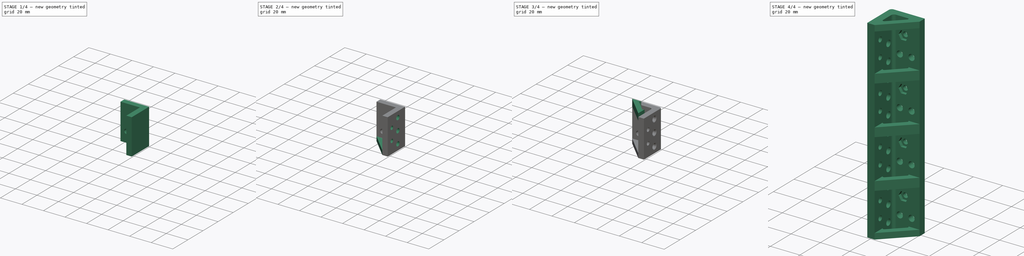
[diagram: build sequence overview — one tinted view per stage of 4, left to right]
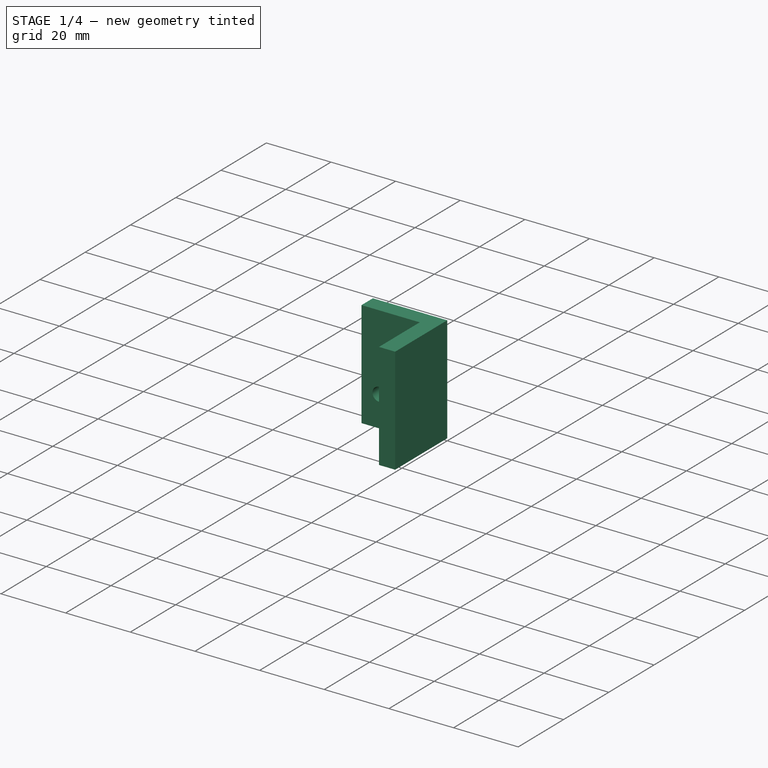
[diagram: stage 1 of 4 — iso view after this stage's code; geometry added in this stage tinted green]
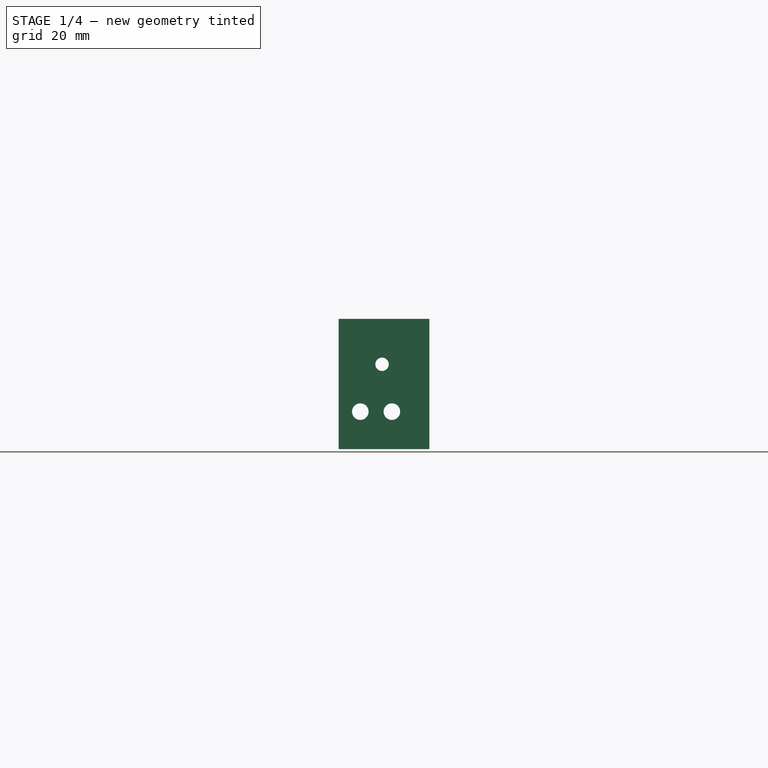
[diagram: stage 1 of 4 — front view after this stage's code; geometry added in this stage tinted green]
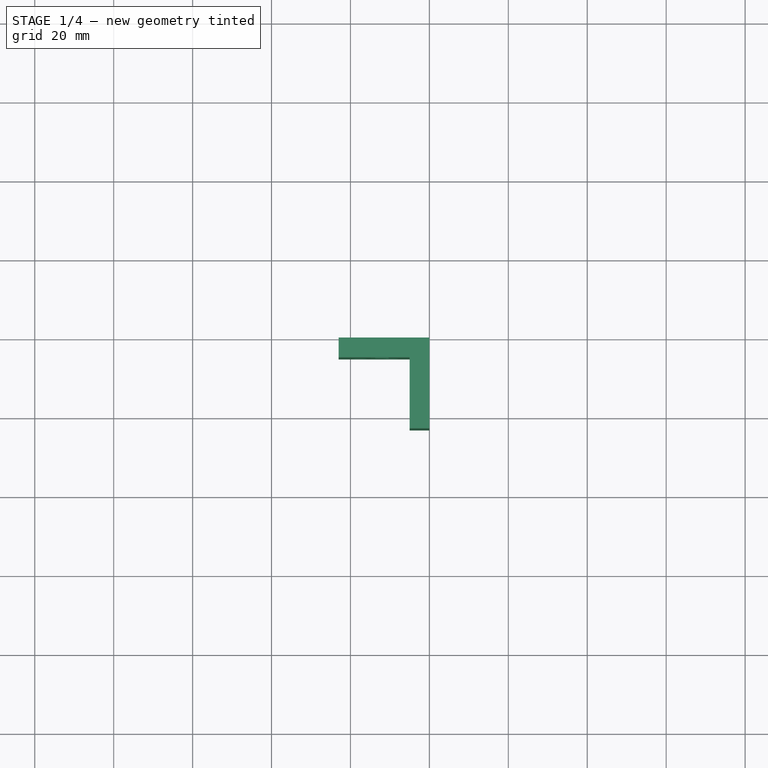
[diagram: stage 1 of 4 — top view after this stage's code; geometry added in this stage tinted green]
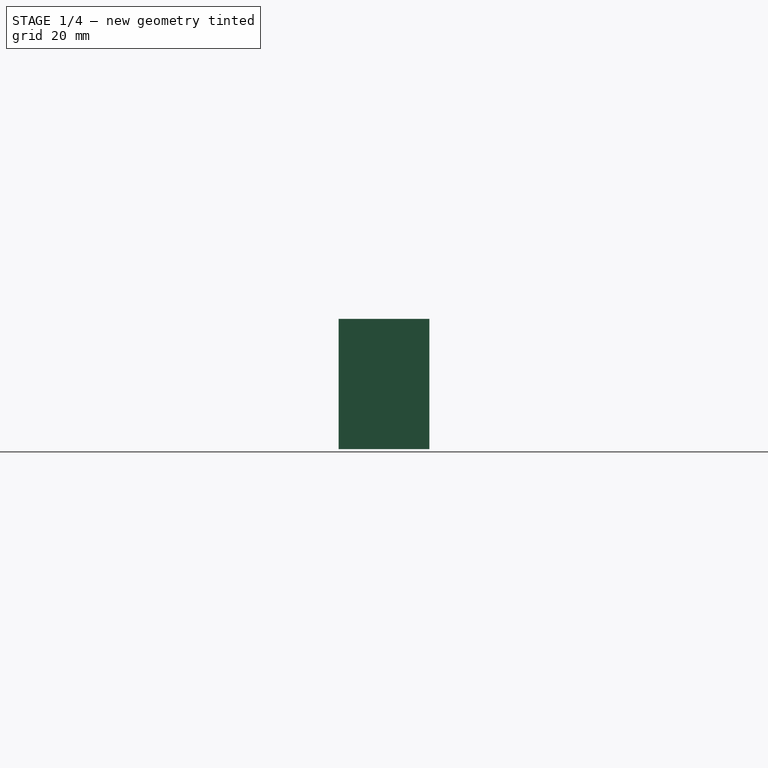
[diagram: stage 1 of 4 — right view after this stage's code; geometry added in this stage tinted green]
FCSTD DOCUMENT  (FreeCAD 0.19R24276 (Git))
Label: vert_branch
License: All rights reserved
LicenseURL: http://en.wikipedia.org/wiki/All_rights_reserved
objects: Sketcher::SketchObject×7, PartDesign::Pad×3, PartDesign::Pocket×3, PartDesign::LinearPattern×3, PartDesign::Hole×2, PartDesign::Fillet×1, PartDesign::Chamfer×1, PartDesign::Body×1, Part::Mirroring×1
note: 32 computed .brp shape members not serialized (recipe doc carries the construction recipe); baked Part::Feature solids carry a one-line shape summary decoded from their .brp

FEATURE [Sketcher::SketchObject] Sketch  label="base_sk"
  FullyConstrained = true
  MapMode = 5
  Support = -> [XY_Plane]
  sketch-geometry (6):
    g0: LineSegment StartX=0 StartY=0 StartZ=0 EndX=-23 EndY=0 EndZ=0
    g1: LineSegment StartX=-23 StartY=0 StartZ=0 EndX=-23 EndY=-5 EndZ=0
    g2: LineSegment StartX=-23 StartY=-5 StartZ=0 EndX=-5 EndY=-5 EndZ=0
    g3: LineSegment StartX=-5 StartY=-5 StartZ=0 EndX=-5 EndY=-23 EndZ=0
    g4: LineSegment StartX=-5 StartY=-23 StartZ=0 EndX=0 EndY=-23 EndZ=0
    g5: LineSegment StartX=0 StartY=-23 StartZ=0 EndX=0 EndY=0 EndZ=0
  constraints (17):
    c: Coincident(g0,g-1)
    c: PointOnObject(g0,g-1)
    c: Coincident(g1,g0)
    c: Vertical(g1)
    c: Coincident(g2,g1)
    c: Horizontal(g2)
    c: Coincident(g3,g2)
    c: Vertical(g3)
    c: Coincident(g4,g3)
    c: PointOnObject(g4,g-2)
    c: Horizontal(g4)
    c: Coincident(g5,g4)
    c: Coincident(g5,g0)
    c: Distance(g0) = 23
    c: Distance(g1) = 5
    c: Distance(g4) = 5
    c: Distance(g5) = 23
FEATURE [PartDesign::Pad] Pad  label="base"
  Direction = (1,1,1)
  Length = 33
  Length2 = 100
  Midplane = true
  Profile = -> Sketch
  Type = 0
FEATURE [Sketcher::SketchObject] Sketch001  label="M3_hole_sk"
  FullyConstrained = true
  MapMode = 5
  Placement = pos=(0,-5,0) rot=(1,0,0;1.5708rad)
  Support = -> [Pad]
  sketch-geometry (1):
    g0: Circle CenterX=-12 CenterY=5 CenterZ=0 NormalX=0 NormalY=0 NormalZ=1 AngleXU=0 Radius=1
  constraints (3):
    c: DistanceY(g-1,g0) = 5
    c: DistanceX(g0,g-1) = 12
    c: Radius(g0) = 1
FEATURE [PartDesign::Hole] Hole  label="M3_hole"
  BaseFeature = -> Pad
  Depth = 25
  DepthType = 1
  Diameter = 3.4
  DrillForDepth = false
  DrillPoint = 1
  DrillPointAngle = 118
  HoleCutCountersinkAngle = 90
  HoleCutCustomValues = false
  HoleCutDepth = 0
  HoleCutDiameter = 6.1
  HoleCutType = 0
  ModelActualThread = false
  Profile = -> Sketch001
  Tapered = false
  TaperedAngle = 90
  ThreadAngle = 0
  ThreadClass = 0
  ThreadCutOffInner = 0
  ThreadCutOffOuter = 0
  ThreadDirection = 0
  ThreadFit = 0
  ThreadPitch = 0
  ThreadSize = 9
  ThreadType = 1
  Threaded = false
FEATURE [Sketcher::SketchObject] Sketch002  label="M3_hex_sk"
  ExternalGeometry = -> [Hole]
  FullyConstrained = true
  MapMode = 5
  Placement = pos=(0,-5,0) rot=(1,0,0;1.5708rad)
  Support = -> [Hole]
  sketch-geometry (7):
    g0: LineSegment StartX=-8.65137 StartY=5 StartZ=0 EndX=-10.3257 EndY=7.9 EndZ=0
    g1: LineSegment StartX=-10.3257 StartY=7.9 StartZ=0 EndX=-13.6743 EndY=7.9 EndZ=0
    g2: LineSegment StartX=-13.6743 StartY=7.9 StartZ=0 EndX=-15.3486 EndY=5 EndZ=0
    g3: LineSegment StartX=-15.3486 StartY=5 StartZ=0 EndX=-13.6743 EndY=2.1 EndZ=0
    g4: LineSegment StartX=-13.6743 StartY=2.1 StartZ=0 EndX=-10.3257 EndY=2.1 EndZ=0
    g5: LineSegment StartX=-10.3257 StartY=2.1 StartZ=0 EndX=-8.65137 EndY=5 EndZ=0
    g6: Circle CenterX=-12 CenterY=5 CenterZ=0 NormalX=0 NormalY=0 NormalZ=1 AngleXU=0 Radius=3.34863
  constraints (16):
    c: Coincident(g0,g1)
    c: Coincident(g1,g2)
    c: Coincident(g2,g3)
    c: Coincident(g3,g4)
    c: Coincident(g4,g5)
    c: Coincident(g5,g0)
    c: Equal(g0, g1-g5) x5
    c: PointOnObject(g0,g6)
    c: PointOnObject(g1,g6)
    c: PointOnObject(g2,g6)
    c: PointOnObject(g3,g6)
    c: PointOnObject(g4,g6)
    c: PointOnObject(g5,g6)
    c: Coincident(g6,g-3)
    c: Horizontal(g0,g6)
    c: DistanceY(g3,g1) = 5.8
FEATURE [PartDesign::Pocket] Pocket  label="M3_hex"
  BaseFeature = -> Hole
  Length = 2.15
  Length2 = 100
  Profile = -> Sketch002
  Type = 0
FEATURE [Sketcher::SketchObject] Sketch003  label="dowel_hole_sk"
  ExternalGeometry = -> [Pocket]
  FullyConstrained = true
  MapMode = 5
  Placement = pos=(0,-5,0) rot=(1,0,0;1.5708rad)
  Support = -> [Pocket]
  sketch-geometry (2):
    g0: Circle CenterX=-17.5 CenterY=-7 CenterZ=0 NormalX=0 NormalY=0 NormalZ=1 AngleXU=0 Radius=2.1
    g1: Circle CenterX=-9.5 CenterY=-7 CenterZ=0 NormalX=0 NormalY=0 NormalZ=1 AngleXU=0 Radius=2.1
  constraints (6):
    c: DistanceX(g-3,g1) = 2.5
    c: DistanceY(g1,g-1) = 7
    c: Horizontal(g0,g1)
    c: DistanceX(g0,g1) = 8
    c: Radius(g0) = 2.1
    c: Equal(g0,g1)
FEATURE [PartDesign::Pocket] Pocket001  label="dowel_hole"
  BaseFeature = -> Pocket
  Length = 5
  Length2 = 100
  Profile = -> Sketch003
  Type = 1
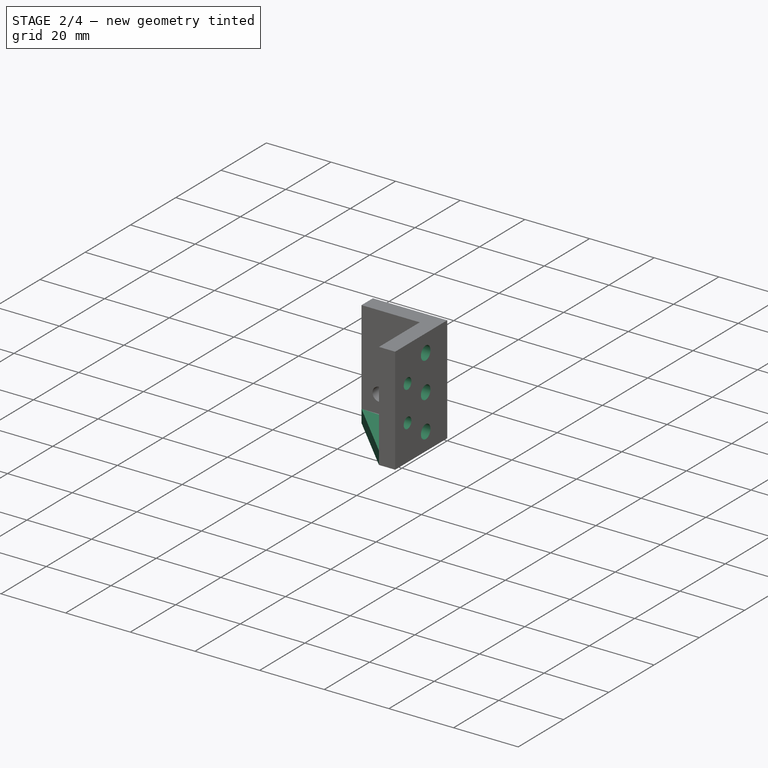
[diagram: stage 2 of 4 — iso view after this stage's code; geometry added in this stage tinted green]
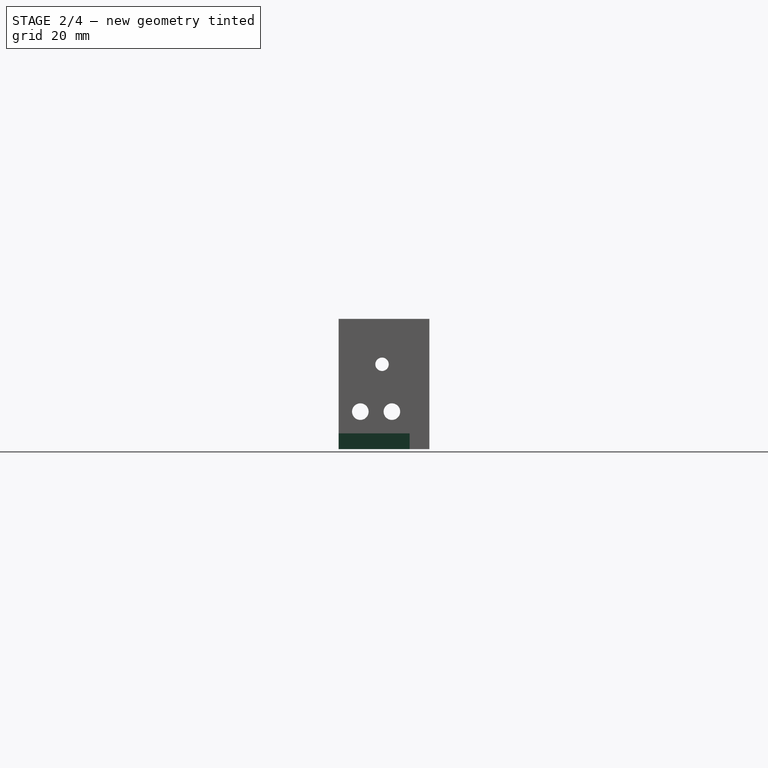
[diagram: stage 2 of 4 — front view after this stage's code; geometry added in this stage tinted green]
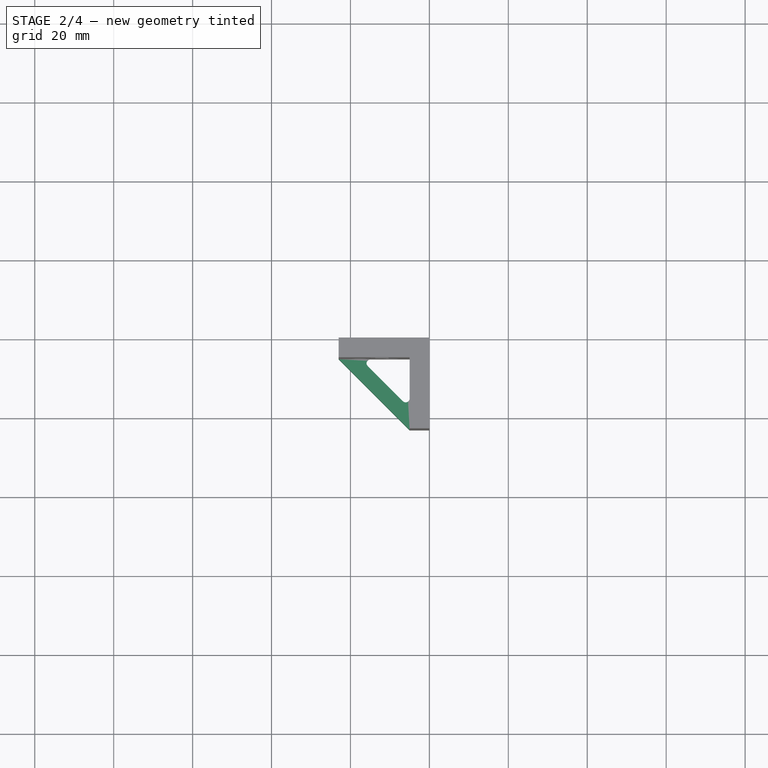
[diagram: stage 2 of 4 — top view after this stage's code; geometry added in this stage tinted green]
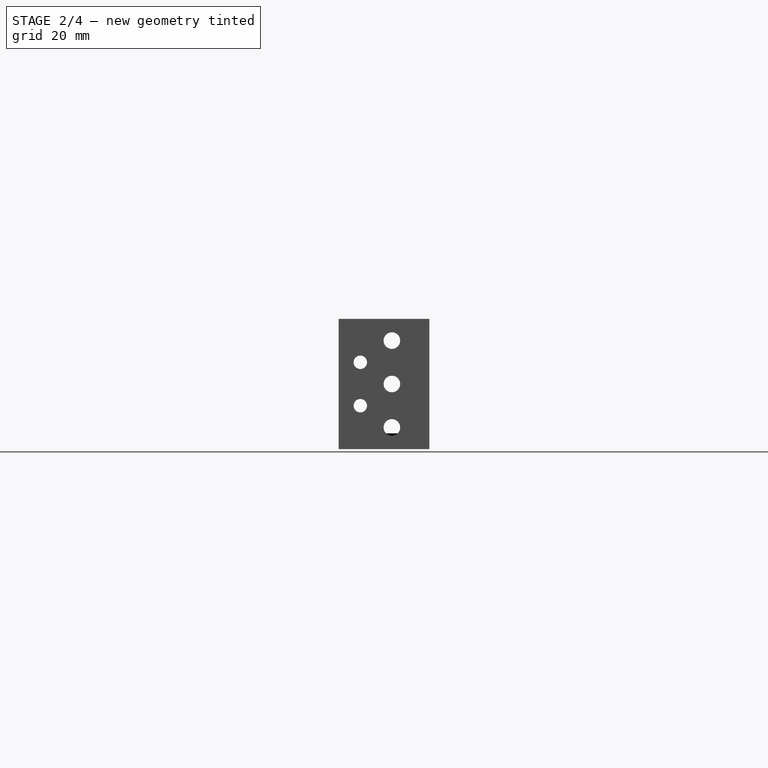
[diagram: stage 2 of 4 — right view after this stage's code; geometry added in this stage tinted green]
FEATURE [Sketcher::SketchObject] Sketch004  label="side_M3_hole_sk"
  ExternalGeometry = -> [Pocket001]
  FullyConstrained = true
  MapMode = 5
  Placement = pos=(0,0,0) rot=(0.57735,0.57735,0.57735;2.0944rad)
  Support = -> [Pocket001]
  sketch-geometry (2):
    g0: Circle CenterX=-17.5 CenterY=5.5 CenterZ=0 NormalX=0 NormalY=0 NormalZ=1 AngleXU=0 Radius=1
    g1: Circle CenterX=-17.5 CenterY=-5.5 CenterZ=0 NormalX=0 NormalY=0 NormalZ=1 AngleXU=0 Radius=1
  constraints (5):
    c: Symmetric(g0,g1,g-1)
    c: DistanceY(g1,g0) = 11
    c: Distance(g0,g-3) = 5.5
    c: Radius(g0) = 1
    c: Equal(g0,g1)
FEATURE [PartDesign::Hole] Hole001  label="side_M3_hole"
  BaseFeature = -> Pocket001
  Depth = 25
  DepthType = 1
  Diameter = 3.4
  DrillForDepth = false
  DrillPoint = 1
  DrillPointAngle = 118
  HoleCutCountersinkAngle = 90
  HoleCutCustomValues = false
  HoleCutDepth = 0
  HoleCutDiameter = 6.1
  HoleCutType = 0
  ModelActualThread = false
  Profile = -> Sketch004
  Tapered = false
  TaperedAngle = 90
  ThreadAngle = 0
  ThreadClass = 0
  ThreadCutOffInner = 0
  ThreadCutOffOuter = 0
  ThreadDirection = 0
  ThreadFit = 0
  ThreadPitch = 0
  ThreadSize = 9
  ThreadType = 1
  Threaded = false
FEATURE [Sketcher::SketchObject] Sketch005  label="side_dowel_hole_sk"
  ExternalGeometry = -> [Hole001]
  FullyConstrained = true
  MapMode = 5
  Placement = pos=(0,0,0) rot=(0.57735,0.57735,0.57735;2.0944rad)
  Support = -> [Hole001]
  sketch-geometry (3):
    g0: Circle CenterX=-9.5 CenterY=0 CenterZ=0 NormalX=0 NormalY=0 NormalZ=1 AngleXU=0 Radius=2.1
    g1: Circle CenterX=-9.5 CenterY=11 CenterZ=0 NormalX=0 NormalY=0 NormalZ=1 AngleXU=0 Radius=2.1
    g2: Circle CenterX=-9.5 CenterY=-11 CenterZ=0 NormalX=0 NormalY=0 NormalZ=1 AngleXU=0 Radius=2.1
  constraints (8):
    c: PointOnObject(g0,g-1)
    c: Vertical(g2,g1)
    c: Symmetric(g1,g2,g0)
    c: Equal(g0,g2)
    c: Equal(g2,g1)
    c: Radius(g0) = 2.1
    c: DistanceY(g0,g1) = 11
    c: DistanceX(g-3,g0) = 8
FEATURE [PartDesign::Pocket] Pocket002  label="side_dowel_hole"
  BaseFeature = -> Hole001
  Length = 5
  Length2 = 100
  Profile = -> Sketch005
  Type = 0
FEATURE [Sketcher::SketchObject] Sketch006  label="stiffener_sk"
  ExternalGeometry = -> [Pocket002]
  FullyConstrained = true
  MapMode = 5
  Placement = pos=(0,0,-16.5) rot=(1,0,0;3.14159rad)
  Support = -> [Pocket002]
  sketch-geometry (6):
    g0: LineSegment StartX=-5 StartY=23 StartZ=0 EndX=-23 EndY=5 EndZ=0
    g1: LineSegment StartX=-23 StartY=5 StartZ=0 EndX=-14.9289 EndY=5 EndZ=0
    g2: LineSegment StartX=-15.636 StartY=6.70711 StartZ=0 EndX=-6.70711 EndY=15.636 EndZ=0
    g3: LineSegment StartX=-5 StartY=14.9289 StartZ=0 EndX=-5 EndY=23 EndZ=0
    g4: ArcOfCircle CenterX=-6 CenterY=14.9289 CenterZ=0 NormalX=0 NormalY=0 NormalZ=1 AngleXU=0 Radius=1 StartAngle=-2.2498e-12 EndAngle=2.35619
    g5: ArcOfCircle CenterX=-14.9289 CenterY=6 CenterZ=0 NormalX=0 NormalY=0 NormalZ=1 AngleXU=0 Radius=1 StartAngle=2.35619 EndAngle=4.71239
  constraints (14):
    c: Coincident(g1,g0)
    c: Coincident(g3,g0)
    c: Parallel(g2,g0)
    c: Tangent(g2,g4) = 1.5708
    c: Tangent(g3,g4) = -1.5708
    c: Tangent(g2,g5) = 1.5708
    c: Tangent(g5,g1) = -1.5708
    c: Equal(g5,g4)
    c: Radius(g4) = 1
    c: Distance(g0,g2) = 4
    c: Coincident(g-3,g0)
    c: Coincident(g0,g-4)
    c: PointOnObject(g1,g-4)
    c: PointOnObject(g3,g-3)
FEATURE [PartDesign::Pad] Pad002  label="end_stiffener"
  BaseFeature = -> Pocket002
  Direction = (1,1,1)
  Length = 4
  Length2 = 100
  Profile = -> Sketch006
  Reversed = true
  Type = 0
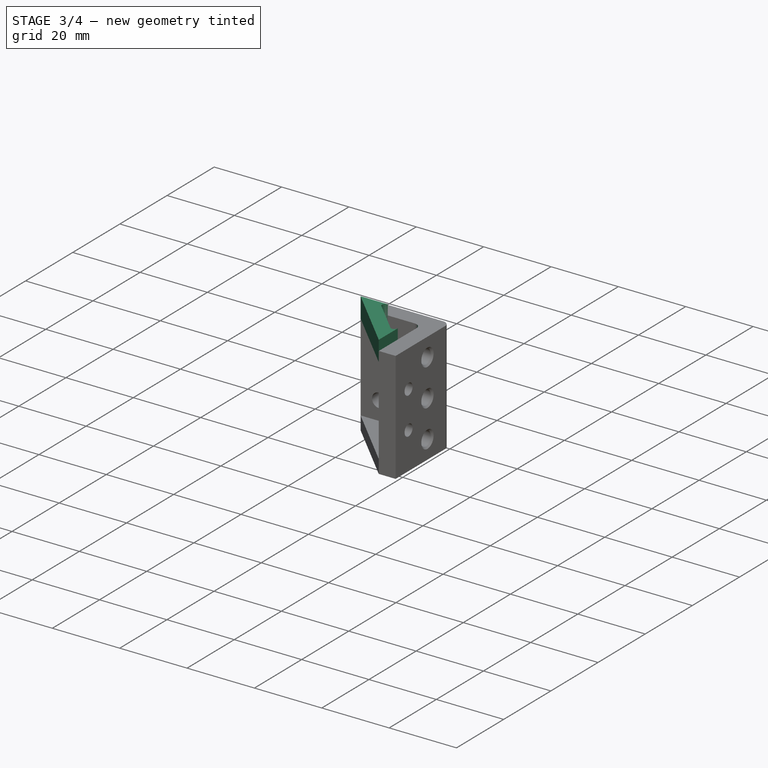
[diagram: stage 3 of 4 — iso view after this stage's code; geometry added in this stage tinted green]
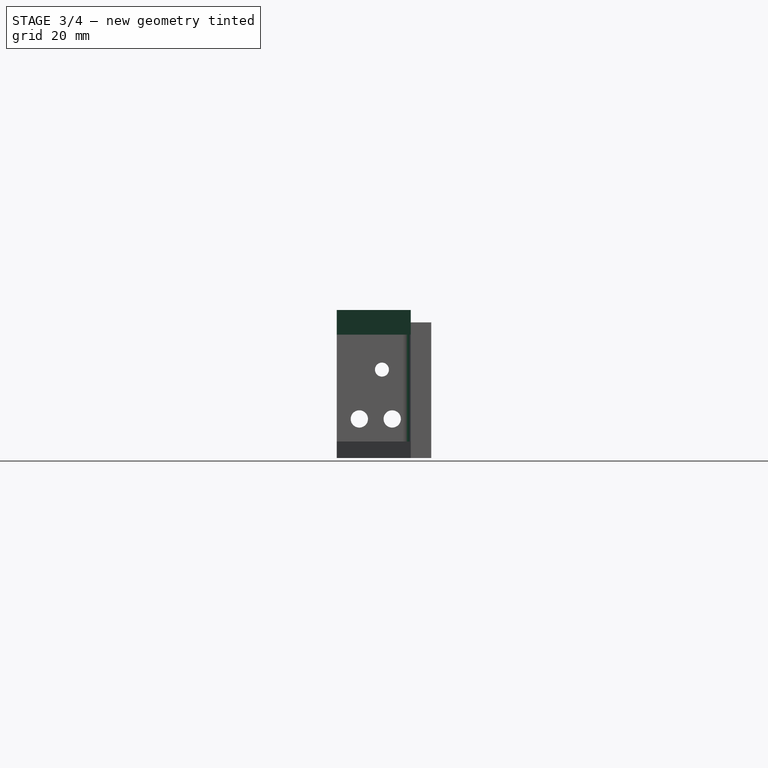
[diagram: stage 3 of 4 — front view after this stage's code; geometry added in this stage tinted green]
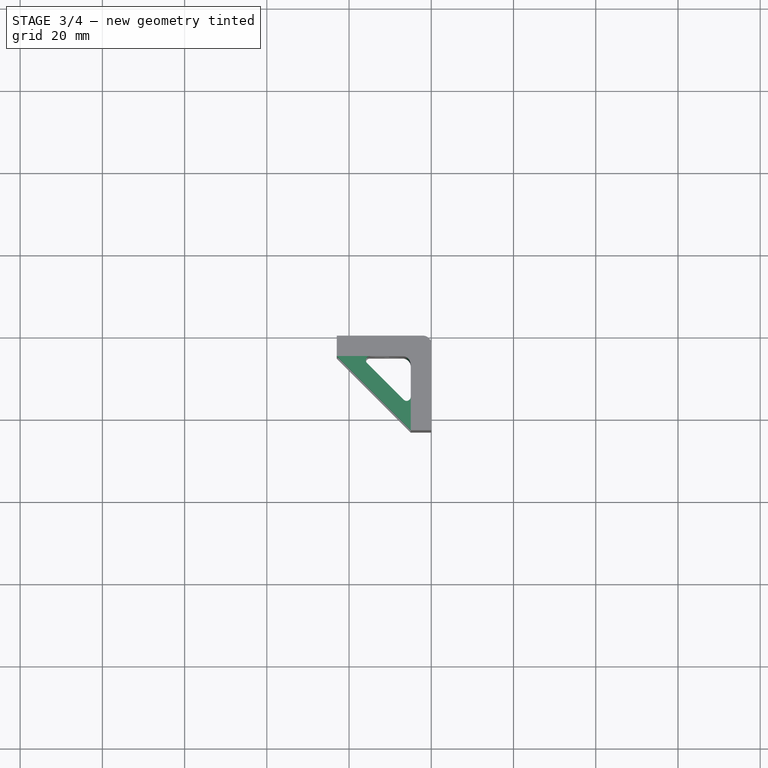
[diagram: stage 3 of 4 — top view after this stage's code; geometry added in this stage tinted green]
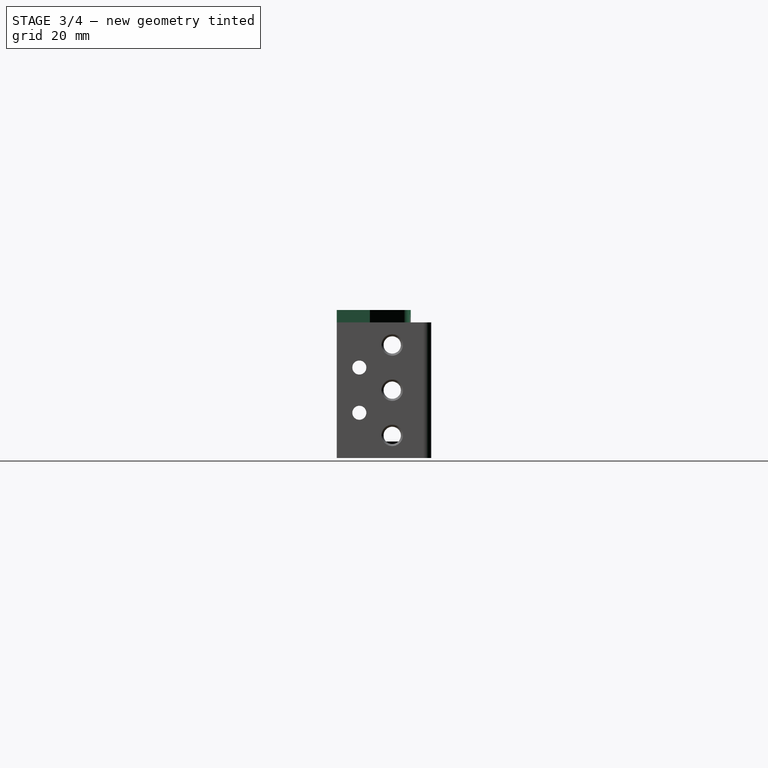
[diagram: stage 3 of 4 — right view after this stage's code; geometry added in this stage tinted green]
FEATURE [PartDesign::Pad] Pad003  label="mid_stiffener"
  BaseFeature = -> Pad002
  Direction = (1,1,1)
  Length = 32
  Length2 = -26
  Profile = -> Pad002 [Face23]
  Type = 4
FEATURE [PartDesign::Fillet] Fillet  label="base_fillet"
  Base = -> Pad003 [Edge56,Edge1]
  BaseFeature = -> Pad003
  Radius = 2
  SupportTransform = false
FEATURE [PartDesign::Chamfer] Chamfer  label="dowel_hole_chamfer"
  Angle = 45
  Base = -> Fillet [Edge7,Edge6,Edge40,Edge38,Edge41]
  BaseFeature = -> Fillet
  ChamferType = 0
  FlipDirection = false
  Size = 0.5
  Size2 = 1
  SupportTransform = false
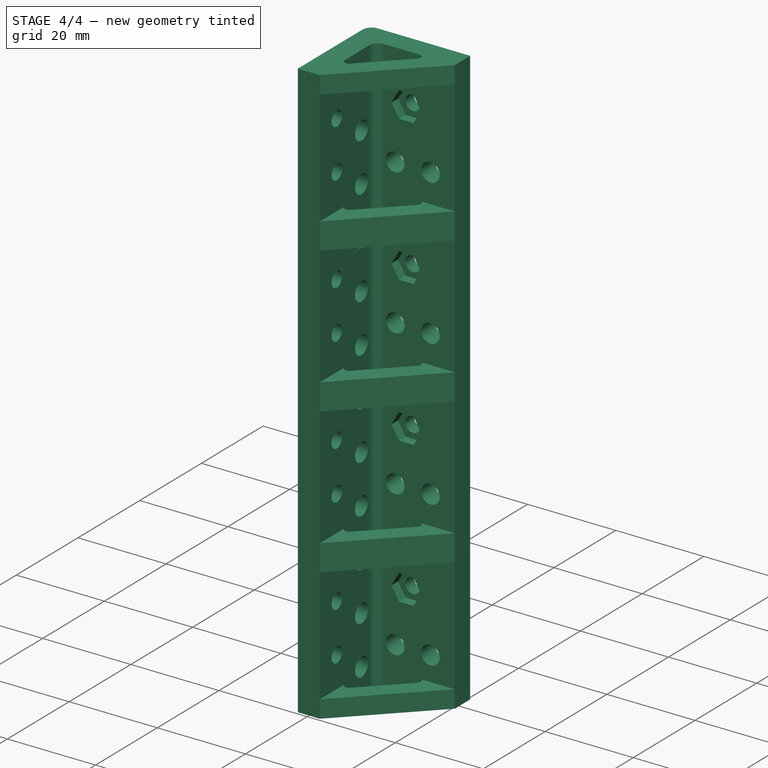
[diagram: stage 4 of 4 — iso view after this stage's code; geometry added in this stage tinted green]
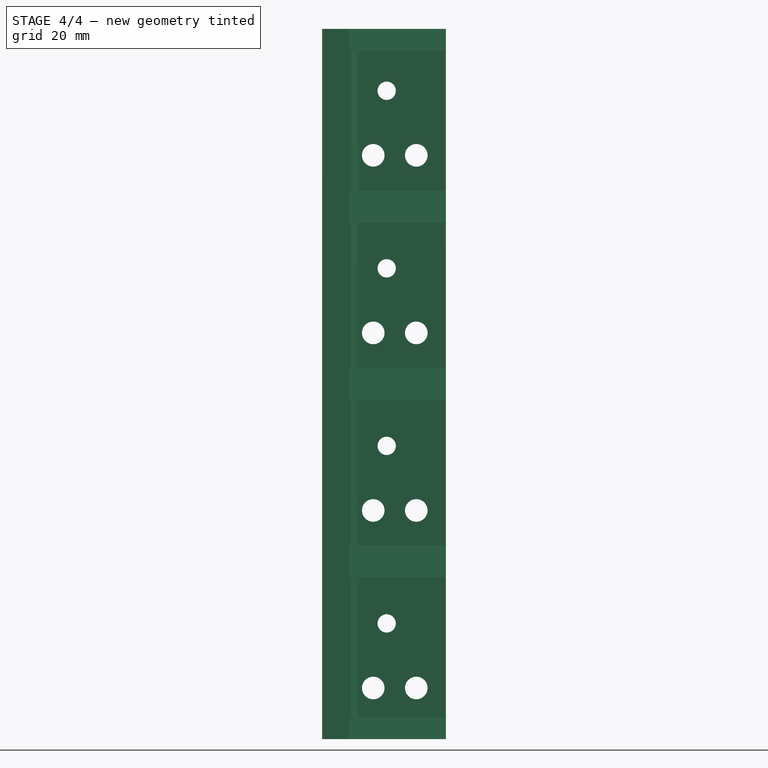
[diagram: stage 4 of 4 — front view after this stage's code; geometry added in this stage tinted green]
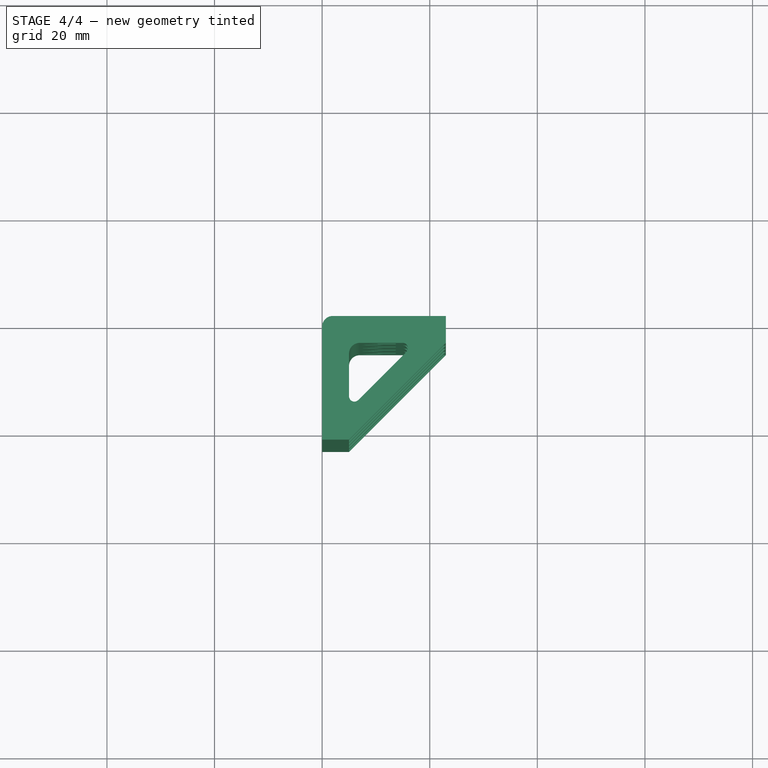
[diagram: stage 4 of 4 — top view after this stage's code; geometry added in this stage tinted green]
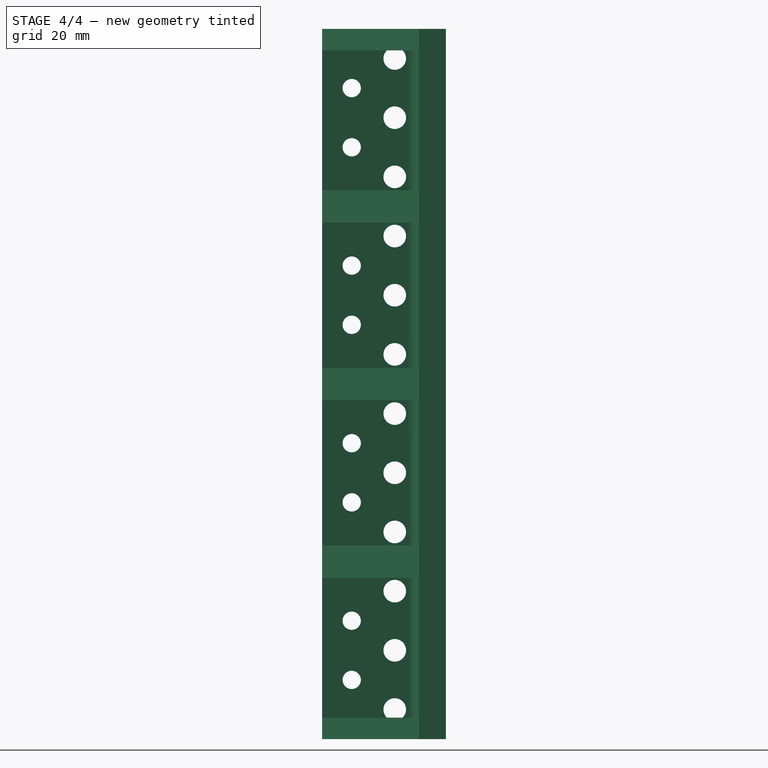
[diagram: stage 4 of 4 — right view after this stage's code; geometry added in this stage tinted green]
FEATURE [PartDesign::LinearPattern] LinearPattern  label="quad_base"
  BaseFeature = -> Chamfer
  Direction = -> Z_Axis
  Length = 99
  Occurrences = 4
  Originals = -> [Pad,Hole,Pocket,Pocket001,Hole001,Pocket002,Fillet,Chamfer]
FEATURE [PartDesign::LinearPattern] LinearPattern001  label="tri_mid_stiffener"
  BaseFeature = -> LinearPattern
  Direction = -> Z_Axis
  Length = 66
  Occurrences = 3
  Originals = -> [Pad003]
FEATURE [PartDesign::LinearPattern] LinearPattern002  label="dual_end_stiffener"
  BaseFeature = -> LinearPattern001
  Direction = -> Z_Axis
  Length = 128
  Occurrences = 2
  Originals = -> [Pad002]
FEATURE [PartDesign::Body] Body  label="left"
  Group = -> [Sketch,Pad,Sketch001,Hole,Sketch002,Pocket,Sketch003,Pocket001,Sketch004,Hole001,Pocket002,Sketch005,Sketch006,Pad002,Pad003,Fillet,Chamfer,LinearPattern,LinearPattern001,LinearPattern002]
  Origin = -> Origin
  Tip = -> LinearPattern002
FEATURE [Part::Mirroring] Part__Mirroring  label="right"
  Base = (0,0,0)
  Normal = (1,0,0)
  Source = -> Body
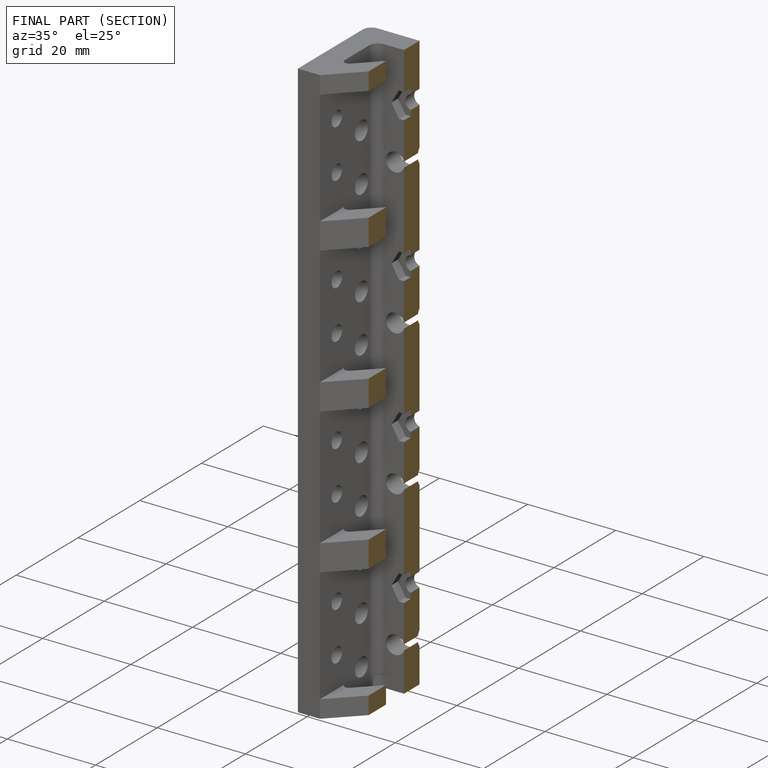
[diagram: finished part — half-section view (interior)]
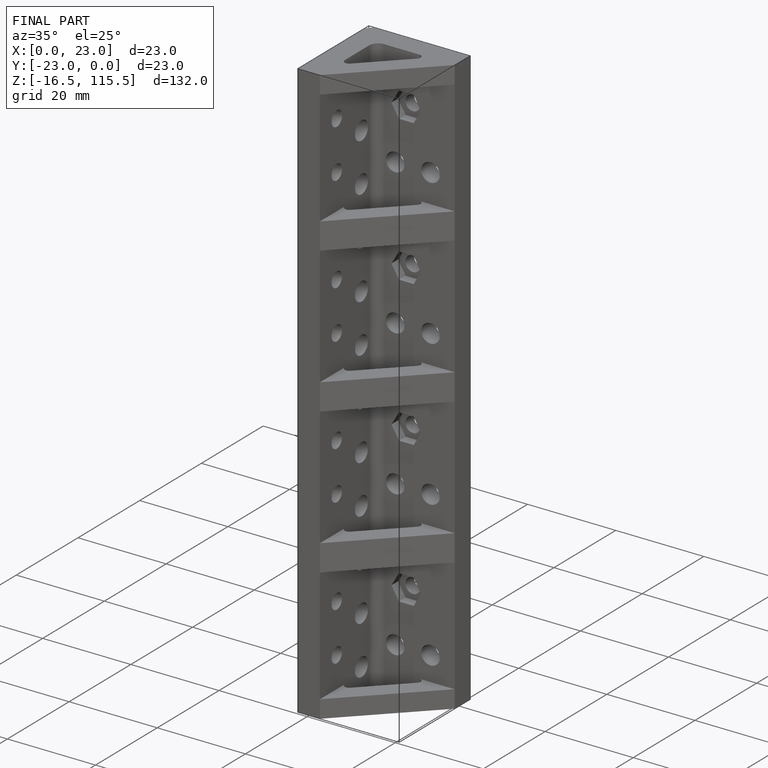
[diagram: finished part — iso view with bounding-box wireframe]
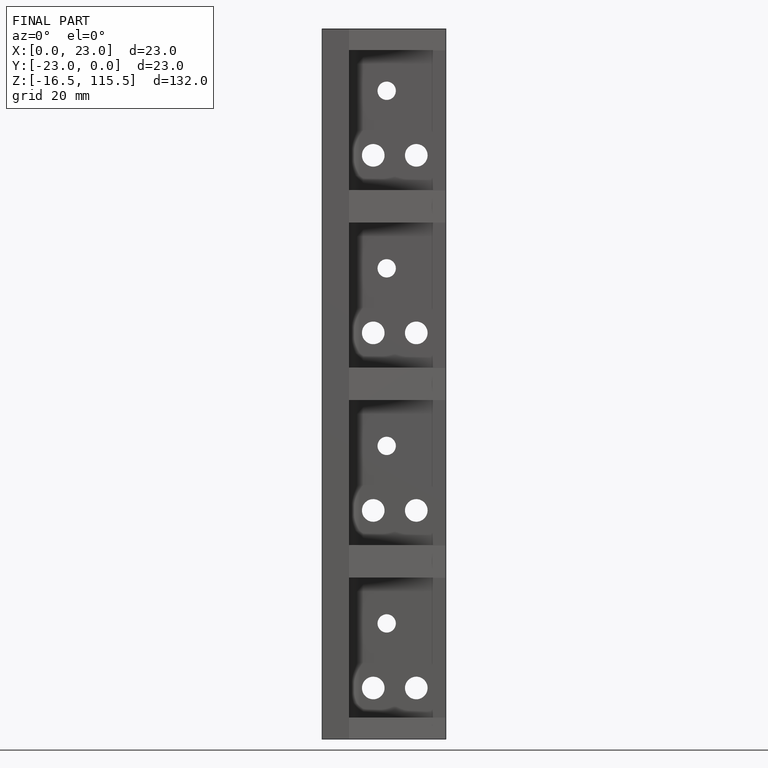
[diagram: finished part — front view with bounding-box wireframe]
